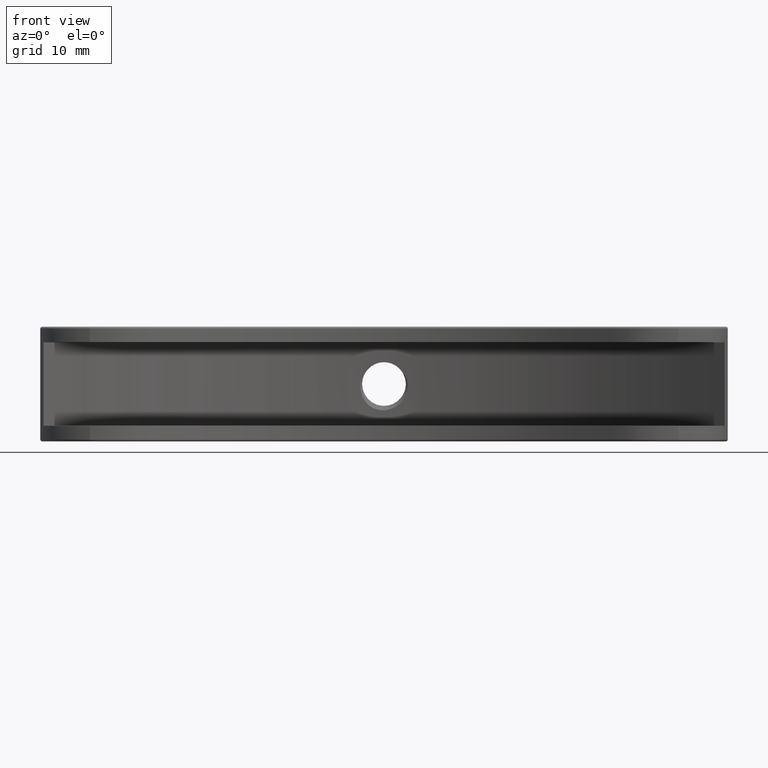
[diagram: clean part render]
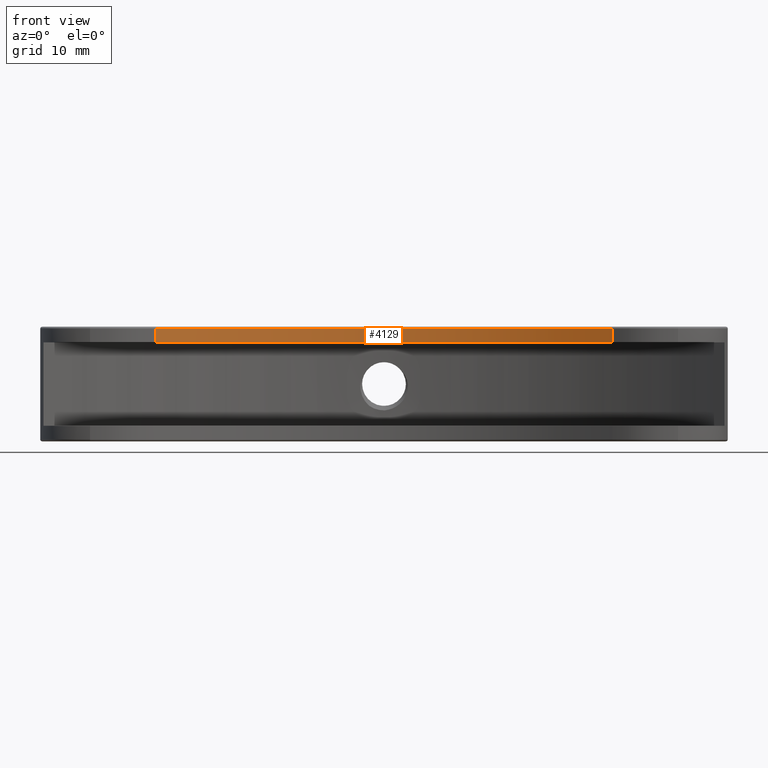
[diagram: same view with one face highlighted and labeled with its STEP entity id]
A machine part, front view. The second image highlights one B-rep face of the part: STEP entity #4129.
In plain terms, the highlighted cylindrical surface (partial cylindrical patch) has radius 37 mm, axis along (-0, -0, -1).
Its self-contained STEP definition (entity closure, byte-faithful):
#63 = CARTESIAN_POINT ( 'NONE',  ( 0.0000000000000000000, -43.59195163956391639, 11.00000000000000000 ) ) ;
#131 = CARTESIAN_POINT ( 'NONE',  ( -21.92561982973376900, -13.78813988532709089, 9.500000000000000000 ) ) ;
#152 = CARTESIAN_POINT ( 'NONE',  ( -21.92561982973376900, -13.78813988532709089, 11.00000000000000000 ) ) ;
#184 = DIRECTION ( 'NONE',  ( -1.000000000000000000, -3.563215788492901272E-15, 0.0000000000000000000 ) ) ;
#517 = DIRECTION ( 'NONE',  ( 0.0000000000000000000, 0.0000000000000000000, 1.000000000000000000 ) ) ;
#550 = AXIS2_PLACEMENT_3D ( 'NONE', #3172, #4291, #184 ) ;
#680 = VERTEX_POINT ( 'NONE', #2556 ) ;
#773 = VERTEX_POINT ( 'NONE', #1033 ) ;
#1033 = CARTESIAN_POINT ( 'NONE',  ( -21.92561982973376900, -13.78813988532709089, 10.79999999999999893 ) ) ;
#1095 = AXIS2_PLACEMENT_3D ( 'NONE', #63, #3830, #4117 ) ;
#1218 = EDGE_LOOP ( 'NONE', ( #4797, #2843, #4633, #3854 ) ) ;
#1252 = CIRCLE ( 'NONE', #550, 37.00000000000000000 ) ;
#1410 = DIRECTION ( 'NONE',  ( -0.0000000000000000000, -0.0000000000000000000, -1.000000000000000000 ) ) ;
#1605 = EDGE_CURVE ( 'NONE', #680, #773, #1252, .T. ) ;
#1883 = CIRCLE ( 'NONE', #4773, 37.00000000000000000 ) ;
#1897 = CYLINDRICAL_SURFACE ( 'NONE', #1095, 37.00000000000000000 ) ;
#2105 = LINE ( 'NONE', #3343, #3565 ) ;
#2395 = DIRECTION ( 'NONE',  ( -1.000000000000000000, -3.563215788492901272E-15, 0.0000000000000000000 ) ) ;
#2422 = DIRECTION ( 'NONE',  ( -0.0000000000000000000, -0.0000000000000000000, -1.000000000000000000 ) ) ;
#2556 = CARTESIAN_POINT ( 'NONE',  ( 21.92561982973376900, -13.78813988532709445, 10.79999999999999893 ) ) ;
#2843 = ORIENTED_EDGE ( 'NONE', *, *, #4719, .F. ) ;
#3143 = LINE ( 'NONE', #152, #4221 ) ;
#3172 = CARTESIAN_POINT ( 'NONE',  ( 0.0000000000000000000, -43.59195163956391639, 10.79999999999999893 ) ) ;
#3343 = CARTESIAN_POINT ( 'NONE',  ( 21.92561982973376900, -13.78813988532709445, 11.00000000000000000 ) ) ;
#3537 = VERTEX_POINT ( 'NONE', #131 ) ;
#3565 = VECTOR ( 'NONE', #1410, 1000.000000000000000 ) ;
#3710 = CARTESIAN_POINT ( 'NONE',  ( 21.92561982973376900, -13.78813988532709622, 9.500000000000000000 ) ) ;
#3830 = DIRECTION ( 'NONE',  ( -0.0000000000000000000, -0.0000000000000000000, -1.000000000000000000 ) ) ;
#3854 = ORIENTED_EDGE ( 'NONE', *, *, #4368, .T. ) ;
#3922 = VERTEX_POINT ( 'NONE', #3710 ) ;
#4117 = DIRECTION ( 'NONE',  ( -1.000000000000000000, 0.0000000000000000000, 0.0000000000000000000 ) ) ;
#4129 = ADVANCED_FACE ( 'NONE', ( #4192 ), #1897, .F. ) ;
#4192 = FACE_OUTER_BOUND ( 'NONE', #1218, .T. ) ;
#4221 = VECTOR ( 'NONE', #2422, 1000.000000000000000 ) ;
#4291 = DIRECTION ( 'NONE',  ( 0.0000000000000000000, 0.0000000000000000000, 1.000000000000000000 ) ) ;
#4368 = EDGE_CURVE ( 'NONE', #773, #3537, #3143, .T. ) ;
#4395 = EDGE_CURVE ( 'NONE', #3922, #3537, #1883, .T. ) ;
#4626 = CARTESIAN_POINT ( 'NONE',  ( 0.0000000000000000000, -43.59195163956391639, 9.500000000000000000 ) ) ;
#4633 = ORIENTED_EDGE ( 'NONE', *, *, #1605, .T. ) ;
#4719 = EDGE_CURVE ( 'NONE', #680, #3922, #2105, .T. ) ;
#4773 = AXIS2_PLACEMENT_3D ( 'NONE', #4626, #517, #2395 ) ;
#4797 = ORIENTED_EDGE ( 'NONE', *, *, #4395, .F. ) ;